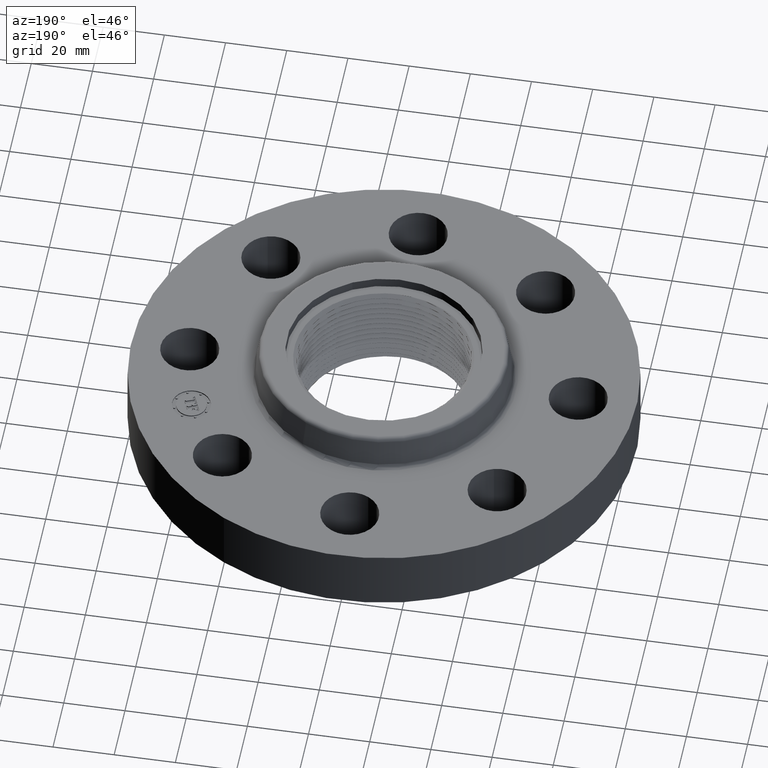
[diagram: clean part render]
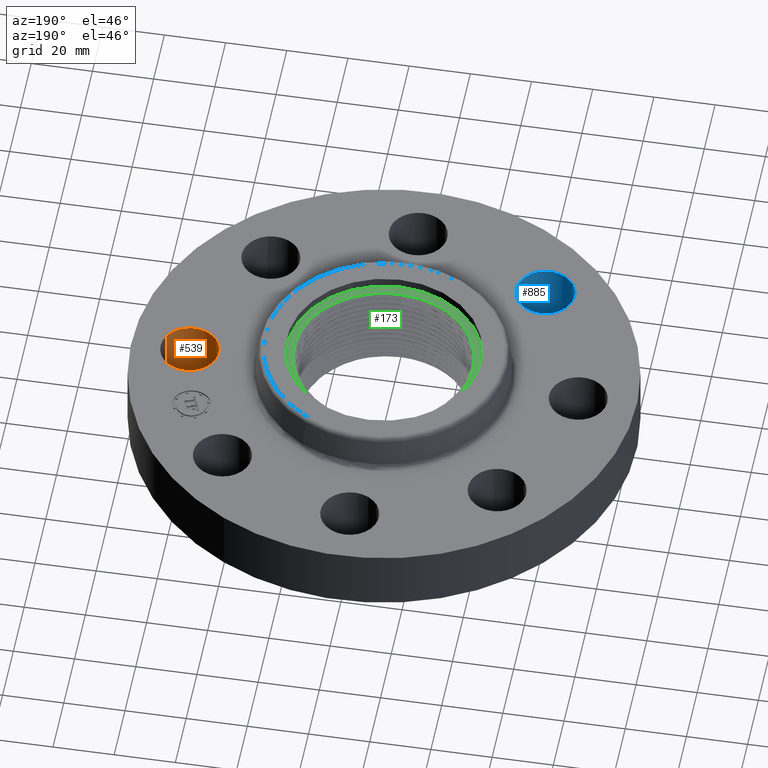
[diagram: same view with three faces highlighted in distinct colors, each labeled with its STEP entity id]
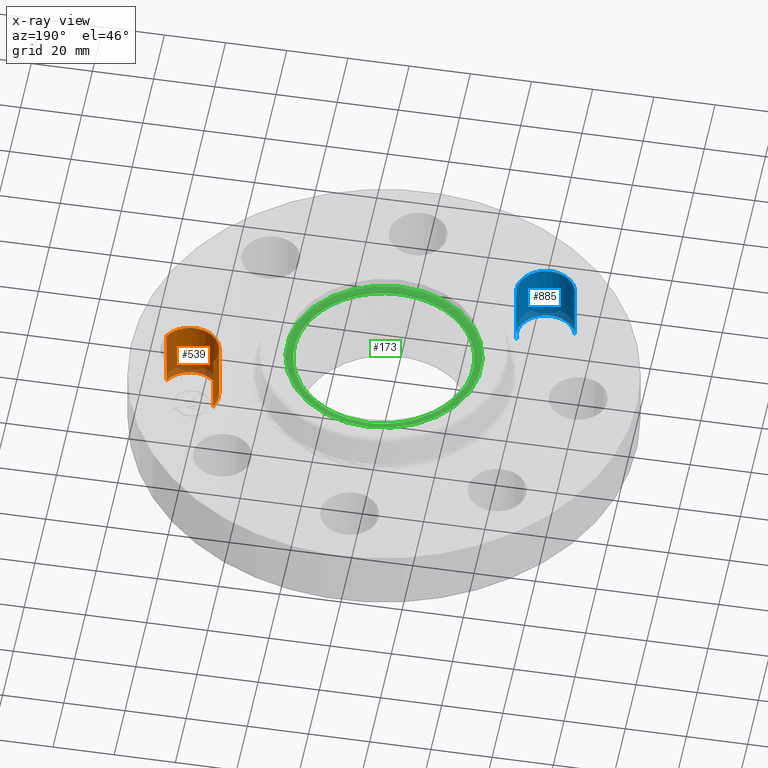
[diagram: x-ray of the same camera — body ghosted, the three highlighted faces saturated]
A machine part, auxiliary view with three faces highlighted in distinct colors.
The next image is the same camera in x-ray (body ghosted, the three faces saturated) — at least one of them is partly hidden behind the body in this view.
Their STEP definitions:

[orange] entity #539 — the highlighted cylindrical surface (edge-blend (fillet) strip) has radius 9.525 mm, axis along (0, -0, -1).
#199=AXIS2_PLACEMENT_3D('Circle Axis2P3D',#197,#198,$) ;
#500=AXIS2_PLACEMENT_3D('Cylinder Axis2P3D',#497,#498,#499) ;
#530=AXIS2_PLACEMENT_3D('Circle Axis2P3D',#528,#529,$) ;
#197=CARTESIAN_POINT('Axis2P3D Location',(2.50000000001,3.49676543189E-017,0.)) ;
#201=CARTESIAN_POINT('Vertex',(2.82909346072,-0.179784576977,0.)) ;
#203=CARTESIAN_POINT('Vertex',(2.1709065393,0.179784576977,0.)) ;
#497=CARTESIAN_POINT('Axis2P3D Location',(2.50000000001,0.,0.806062992129)) ;
#502=CARTESIAN_POINT('Line Origine',(2.1709065393,0.179784576977,0.405000000002)) ;
#506=CARTESIAN_POINT('Vertex',(2.1709065393,0.179784576977,0.810000000003)) ;
#509=CARTESIAN_POINT('Line Origine',(2.82909346072,-0.179784576977,0.405000000002)) ;
#513=CARTESIAN_POINT('Vertex',(2.82909346072,-0.179784576977,0.810000000003)) ;
#528=CARTESIAN_POINT('Axis2P3D Location',(2.50000000001,0.,0.810000000003)) ;
#198=DIRECTION('Axis2P3D Direction',(0.,0.,-0.0393700787402)) ;
#498=DIRECTION('Axis2P3D Direction',(0.,-0.,-0.0393700787402)) ;
#499=DIRECTION('Axis2P3D XDirection',(0.0345504945626,-0.0188750212049,0.)) ;
#503=DIRECTION('Vector Direction',(0.,0.,-0.0393700787402)) ;
#510=DIRECTION('Vector Direction',(0.,0.,-0.0393700787402)) ;
#529=DIRECTION('Axis2P3D Direction',(0.,-0.,-0.0393700787402)) ;
#504=VECTOR('Line Direction',#503,0.0393700787402) ;
#511=VECTOR('Line Direction',#510,0.0393700787402) ;
#534=ORIENTED_EDGE('',*,*,#515,.F.) ;
#535=ORIENTED_EDGE('',*,*,#205,.T.) ;
#536=ORIENTED_EDGE('',*,*,#508,.T.) ;
#537=ORIENTED_EDGE('',*,*,#532,.F.) ;
#539=ADVANCED_FACE('PartBody',(#538),#501,.F.) ;
#200=CIRCLE('generated circle',#199,0.375000000002) ;
#531=CIRCLE('generated circle',#530,0.375000000002) ;
#501=CYLINDRICAL_SURFACE('generated cylinder',#500,0.375000000002) ;
#205=EDGE_CURVE('',#202,#204,#200,.T.) ;
#508=EDGE_CURVE('',#204,#507,#505,.F.) ;
#515=EDGE_CURVE('',#202,#514,#512,.F.) ;
#532=EDGE_CURVE('',#514,#507,#531,.T.) ;
#533=EDGE_LOOP('',(#534,#535,#536,#537)) ;
#538=FACE_OUTER_BOUND('',#533,.T.) ;
#505=LINE('Line',#502,#504) ;
#512=LINE('Line',#509,#511) ;
#202=VERTEX_POINT('',#201) ;
#204=VERTEX_POINT('',#203) ;
#507=VERTEX_POINT('',#506) ;
#514=VERTEX_POINT('',#513) ;

[blue] entity #885 — the highlighted cylindrical surface (edge-blend (fillet) strip) has radius 9.525 mm, axis along (-0, 0, -1).
#253=AXIS2_PLACEMENT_3D('Circle Axis2P3D',#251,#252,$) ;
#858=AXIS2_PLACEMENT_3D('Cylinder Axis2P3D',#855,#856,#857) ;
#876=AXIS2_PLACEMENT_3D('Circle Axis2P3D',#874,#875,$) ;
#251=CARTESIAN_POINT('Axis2P3D Location',(-1.76776695297,-1.76776695297,0.)) ;
#255=CARTESIAN_POINT('Vertex',(-1.40793584173,-1.66218962879,0.)) ;
#257=CARTESIAN_POINT('Vertex',(-2.12759806422,-1.87334427715,0.)) ;
#855=CARTESIAN_POINT('Axis2P3D Location',(-1.76776695297,-1.76776695297,0.806062992129)) ;
#860=CARTESIAN_POINT('Line Origine',(-1.40793584173,-1.66218962879,0.405000000002)) ;
#864=CARTESIAN_POINT('Vertex',(-1.40793584173,-1.66218962879,0.810000000003)) ;
#867=CARTESIAN_POINT('Line Origine',(-2.12759806422,-1.87334427715,0.405000000002)) ;
#871=CARTESIAN_POINT('Vertex',(-2.12759806422,-1.87334427715,0.810000000003)) ;
#874=CARTESIAN_POINT('Axis2P3D Location',(-1.76776695297,-1.76776695297,0.810000000003)) ;
#252=DIRECTION('Axis2P3D Direction',(0.,0.,-0.0393700787402)) ;
#856=DIRECTION('Axis2P3D Direction',(-0.,0.,-0.0393700787402)) ;
#857=DIRECTION('Axis2P3D XDirection',(-0.0377775444876,-0.0110842335096,0.)) ;
#861=DIRECTION('Vector Direction',(0.,0.,-0.0393700787402)) ;
#868=DIRECTION('Vector Direction',(0.,0.,-0.0393700787402)) ;
#875=DIRECTION('Axis2P3D Direction',(-0.,0.,-0.0393700787402)) ;
#862=VECTOR('Line Direction',#861,0.0393700787402) ;
#869=VECTOR('Line Direction',#868,0.0393700787402) ;
#880=ORIENTED_EDGE('',*,*,#866,.F.) ;
#881=ORIENTED_EDGE('',*,*,#259,.T.) ;
#882=ORIENTED_EDGE('',*,*,#873,.T.) ;
#883=ORIENTED_EDGE('',*,*,#878,.F.) ;
#885=ADVANCED_FACE('PartBody',(#884),#859,.F.) ;
#254=CIRCLE('generated circle',#253,0.375000000001) ;
#877=CIRCLE('generated circle',#876,0.375000000001) ;
#859=CYLINDRICAL_SURFACE('generated cylinder',#858,0.375000000001) ;
#259=EDGE_CURVE('',#256,#258,#254,.T.) ;
#866=EDGE_CURVE('',#256,#865,#863,.F.) ;
#873=EDGE_CURVE('',#258,#872,#870,.F.) ;
#878=EDGE_CURVE('',#865,#872,#877,.T.) ;
#879=EDGE_LOOP('',(#880,#881,#882,#883)) ;
#884=FACE_OUTER_BOUND('',#879,.T.) ;
#863=LINE('Line',#860,#862) ;
#870=LINE('Line',#867,#869) ;
#256=VERTEX_POINT('',#255) ;
#258=VERTEX_POINT('',#257) ;
#865=VERTEX_POINT('',#864) ;
#872=VERTEX_POINT('',#871) ;

[green] entity #173 — the highlighted planar face has unit normal (0, 0, 1).
#38=AXIS2_PLACEMENT_3D('Plane Axis2P3D',#35,#36,#37) ;
#42=AXIS2_PLACEMENT_3D('Circle Axis2P3D',#40,#41,$) ;
#51=AXIS2_PLACEMENT_3D('Circle Axis2P3D',#49,#50,$) ;
#60=AXIS2_PLACEMENT_3D('Circle Axis2P3D',#58,#59,$) ;
#35=CARTESIAN_POINT('Axis2P3D Location',(2.30786518505E-016,-3.00721827143E-016,1.12)) ;
#40=CARTESIAN_POINT('Axis2P3D Location',(0.,0.,1.12)) ;
#44=CARTESIAN_POINT('Vertex',(-0.599281923258,1.09697820237,1.12)) ;
#46=CARTESIAN_POINT('Vertex',(0.599281923258,-1.09697820237,1.12)) ;
#49=CARTESIAN_POINT('Axis2P3D Location',(0.,0.,1.12)) ;
#58=CARTESIAN_POINT('Axis2P3D Location',(-4.68566567873E-016,8.39223703654E-017,1.12)) ;
#62=CARTESIAN_POINT('Vertex',(-0.150840070561,-1.10438011555,1.12)) ;
#64=CARTESIAN_POINT('Vertex',(-0.0171487735169,-1.11450172098,1.12)) ;
#68=CARTESIAN_POINT('Control Point',(-0.562426541409,1.0295170906,1.12)) ;
#69=CARTESIAN_POINT('Control Point',(-0.647778467446,0.980659770123,1.12)) ;
#70=CARTESIAN_POINT('Control Point',(-0.727920837051,0.922907400414,1.12)) ;
#71=CARTESIAN_POINT('Control Point',(-0.801596539818,0.85699662272,1.12)) ;
#72=CARTESIAN_POINT('Control Point',(-0.933872549589,0.710830324438,1.12)) ;
#73=CARTESIAN_POINT('Control Point',(-1.03259605048,0.540727091829,1.12)) ;
#74=CARTESIAN_POINT('Control Point',(-1.07274478723,0.450838947086,1.12)) ;
#75=CARTESIAN_POINT('Control Point',(-1.13340762027,0.264163538251,1.12)) ;
#76=CARTESIAN_POINT('Control Point',(-1.15366900757,0.0693156180802,1.12)) ;
#77=CARTESIAN_POINT('Control Point',(-1.15340992681,-0.0287306099282,1.12)) ;
#78=CARTESIAN_POINT('Control Point',(-1.13669207191,-0.181436369489,1.12)) ;
#79=CARTESIAN_POINT('Control Point',(-1.09515365689,-0.328474119518,1.12)) ;
#80=CARTESIAN_POINT('Control Point',(-1.07683043246,-0.380917161178,1.12)) ;
#81=CARTESIAN_POINT('Control Point',(-1.01783516613,-0.5216507378,1.12)) ;
#82=CARTESIAN_POINT('Control Point',(-0.93613900015,-0.650865634626,1.12)) ;
#83=CARTESIAN_POINT('Control Point',(-0.875612101569,-0.727134902953,1.12)) ;
#84=CARTESIAN_POINT('Control Point',(-0.739373475256,-0.865443232592,1.12)) ;
#85=CARTESIAN_POINT('Control Point',(-0.577361896007,-0.971595204354,1.12)) ;
#86=CARTESIAN_POINT('Control Point',(-0.491032431877,-1.01572821413,1.12)) ;
#87=CARTESIAN_POINT('Control Point',(-0.370629394461,-1.06173719781,1.12)) ;
#88=CARTESIAN_POINT('Control Point',(-0.245714103949,-1.08997743427,1.12)) ;
#89=CARTESIAN_POINT('Control Point',(-0.214246143192,-1.09591493007,1.12)) ;
#90=CARTESIAN_POINT('Control Point',(-0.182603145833,-1.10071782842,1.12)) ;
#91=CARTESIAN_POINT('Control Point',(-0.150839914952,-1.10438030402,1.12)) ;
#92=CARTESIAN_POINT('Vertex',(-0.562426541409,1.0295170906,1.12)) ;
#96=CARTESIAN_POINT('Control Point',(-0.092768083877,1.17932394937,1.12)) ;
#97=CARTESIAN_POINT('Control Point',(-0.191821582769,1.16956242431,1.12)) ;
#98=CARTESIAN_POINT('Control Point',(-0.289745784226,1.14939116665,1.12)) ;
#99=CARTESIAN_POINT('Control Point',(-0.385084495439,1.11896641438,1.12)) ;
#100=CARTESIAN_POINT('Control Point',(-0.476401567714,1.07875967847,1.12)) ;
#101=CARTESIAN_POINT('Control Point',(-0.562426541409,1.0295170906,1.12)) ;
#102=CARTESIAN_POINT('Vertex',(-0.092768083877,1.17932394937,1.12)) ;
#106=CARTESIAN_POINT('Control Point',(-0.092768083877,1.17932394937,1.12)) ;
#107=CARTESIAN_POINT('Control Point',(-0.074235691843,1.18044929492,1.12)) ;
#108=CARTESIAN_POINT('Control Point',(-0.0556842739066,1.18121081772,1.12)) ;
#109=CARTESIAN_POINT('Control Point',(-0.037111086878,1.18160817611,1.12)) ;
#110=CARTESIAN_POINT('Control Point',(-0.018550214268,1.18164071155,1.12)) ;
#111=CARTESIAN_POINT('Control Point',(1.05429838113E-006,1.18130902656,1.12)) ;
#112=CARTESIAN_POINT('Vertex',(1.05429838109E-006,1.18130902656,1.12)) ;
#116=CARTESIAN_POINT('Control Point',(1.0542983772E-006,1.18130902656,1.12)) ;
#117=CARTESIAN_POINT('Control Point',(0.0986706284277,1.17954487658,1.12)) ;
#118=CARTESIAN_POINT('Control Point',(0.197068334388,1.16747720307,1.12)) ;
#119=CARTESIAN_POINT('Control Point',(0.293743360111,1.14514338525,1.12)) ;
#120=CARTESIAN_POINT('Control Point',(0.480812992993,1.08063589885,1.12)) ;
#121=CARTESIAN_POINT('Control Point',(0.650098876913,0.978943808893,1.12)) ;
#122=CARTESIAN_POINT('Control Point',(0.729016731166,0.919409419969,1.12)) ;
#123=CARTESIAN_POINT('Control Point',(0.873010898305,0.784798756967,1.12)) ;
#124=CARTESIAN_POINT('Control Point',(0.985645857059,0.623431967474,1.12)) ;
#125=CARTESIAN_POINT('Control Point',(1.0331805336,0.537164134028,1.12)) ;
#126=CARTESIAN_POINT('Control Point',(1.09295894838,0.394867092219,1.12)) ;
#127=CARTESIAN_POINT('Control Point',(1.12829625758,0.245428148141,1.12)) ;
#128=CARTESIAN_POINT('Control Point',(1.13783510269,0.19041846962,1.12)) ;
#129=CARTESIAN_POINT('Control Point',(1.15485146255,0.0380008581671,1.12)) ;
#130=CARTESIAN_POINT('Control Point',(1.1464329547,-0.115446448516,1.12)) ;
#131=CARTESIAN_POINT('Control Point',(1.13071563112,-0.212064603479,1.12)) ;
#132=CARTESIAN_POINT('Control Point',(1.07907845653,-0.400304978466,1.12)) ;
#133=CARTESIAN_POINT('Control Point',(0.989212245408,-0.573147639066,1.12)) ;
#134=CARTESIAN_POINT('Control Point',(0.935256886614,-0.654382122923,1.12)) ;
#135=CARTESIAN_POINT('Control Point',(0.830962026319,-0.7799183649,1.12)) ;
#136=CARTESIAN_POINT('Control Point',(0.706580465292,-0.884467452085,1.12)) ;
#137=CARTESIAN_POINT('Control Point',(0.653355683388,-0.922978496175,1.12)) ;
#138=CARTESIAN_POINT('Control Point',(0.597557657444,-0.95747220928,1.12)) ;
#139=CARTESIAN_POINT('Control Point',(0.539601083007,-0.987736156473,1.12)) ;
#140=CARTESIAN_POINT('Vertex',(0.539601083007,-0.987736156473,1.12)) ;
#144=CARTESIAN_POINT('Control Point',(0.539601083007,-0.987736156473,1.12)) ;
#145=CARTESIAN_POINT('Control Point',(0.449920791978,-1.03456569423,1.12)) ;
#146=CARTESIAN_POINT('Control Point',(0.355071853545,-1.07126769182,1.12)) ;
#147=CARTESIAN_POINT('Control Point',(0.256569217146,-1.09706677648,1.12)) ;
#148=CARTESIAN_POINT('Control Point',(0.145060945382,-1.11312465449,1.12)) ;
#149=CARTESIAN_POINT('Control Point',(0.0332544966505,-1.11517516006,1.12)) ;
#150=CARTESIAN_POINT('Control Point',(0.0221648799452,-1.11524071559,1.12)) ;
#151=CARTESIAN_POINT('Control Point',(0.011079674991,-1.11516848422,1.12)) ;
#152=CARTESIAN_POINT('Control Point',(-1.60504942207E-006,-1.11495856213,1.12)) ;
#153=CARTESIAN_POINT('Vertex',(-1.60504942194E-006,-1.11495856213,1.12)) ;
#157=CARTESIAN_POINT('Control Point',(-1.60504942013E-006,-1.11495856213,1.12)) ;
#158=CARTESIAN_POINT('Control Point',(-0.00343191115714,-1.11489357893,1.12)) ;
#159=CARTESIAN_POINT('Control Point',(-0.00686184131403,-1.11481540118,1.12)) ;
#160=CARTESIAN_POINT('Control Point',(-0.0102914091141,-1.11472402863,1.12)) ;
#161=CARTESIAN_POINT('Control Point',(-0.0137203827362,-1.11461946823,1.12)) ;
#162=CARTESIAN_POINT('Control Point',(-0.0171487734554,-1.11450172109,1.12)) ;
#36=DIRECTION('Axis2P3D Direction',(0.,0.,0.0393700787402)) ;
#37=DIRECTION('Axis2P3D XDirection',(0.0393700787402,0.,0.)) ;
#41=DIRECTION('Axis2P3D Direction',(0.,0.,0.0393700787402)) ;
#50=DIRECTION('Axis2P3D Direction',(0.,0.,0.0393700787402)) ;
#59=DIRECTION('Axis2P3D Direction',(0.,0.,0.0393700787402)) ;
#55=ORIENTED_EDGE('',*,*,#48,.T.) ;
#56=ORIENTED_EDGE('',*,*,#53,.T.) ;
#165=ORIENTED_EDGE('',*,*,#66,.F.) ;
#166=ORIENTED_EDGE('',*,*,#94,.F.) ;
#167=ORIENTED_EDGE('',*,*,#104,.F.) ;
#168=ORIENTED_EDGE('',*,*,#114,.T.) ;
#169=ORIENTED_EDGE('',*,*,#142,.T.) ;
#170=ORIENTED_EDGE('',*,*,#155,.T.) ;
#171=ORIENTED_EDGE('',*,*,#163,.T.) ;
#172=FACE_BOUND('',#164,.T.) ;
#173=ADVANCED_FACE('PartBody',(#57,#172),#39,.T.) ;
#67=B_SPLINE_CURVE_WITH_KNOTS('',5,(#68,#69,#70,#71,#72,#73,#74,#75,#76,#77,#78,#79,#80,#81,#82,#83,#84,#85,#86,#87,#88,#89,#90,#91),.UNSPECIFIED.,.F.,.U.,(6,3,3,3,3,3,3,6),(0.,17.4833817144,34.9752780926,52.4645756964,62.4562070835,79.9482461122,97.4469645623,103.282346768),.UNSPECIFIED.) ;
#95=B_SPLINE_CURVE_WITH_KNOTS('',5,(#96,#97,#98,#99,#100,#101),.UNSPECIFIED.,.F.,.U.,(6,6),(0.,17.6212479634),.UNSPECIFIED.) ;
#105=B_SPLINE_CURVE_WITH_KNOTS('',5,(#106,#107,#108,#109,#110,#111),.UNSPECIFIED.,.F.,.U.,(6,6),(0.,3.28696681434),.UNSPECIFIED.) ;
#115=B_SPLINE_CURVE_WITH_KNOTS('',5,(#116,#117,#118,#119,#120,#121,#122,#123,#124,#125,#126,#127,#128,#129,#130,#131,#132,#133,#134,#135,#136,#137,#138,#139),.UNSPECIFIED.,.F.,.U.,(6,3,3,3,3,3,3,6),(0.,17.4825573032,34.9704553259,52.4525142777,62.4384848041,79.9175632257,97.3996234112,109.258859329),.UNSPECIFIED.) ;
#143=B_SPLINE_CURVE_WITH_KNOTS('',5,(#144,#145,#146,#147,#148,#149,#150,#151,#152),.UNSPECIFIED.,.F.,.U.,(6,3,6),(0.,18.3506312901,20.3704701994),.UNSPECIFIED.) ;
#156=B_SPLINE_CURVE_WITH_KNOTS('',5,(#157,#158,#159,#160,#161,#162),.UNSPECIFIED.,.F.,.U.,(6,6),(0.,0.6252586093),.UNSPECIFIED.) ;
#43=CIRCLE('generated circle',#42,1.25000000001) ;
#52=CIRCLE('generated circle',#51,1.25000000001) ;
#61=CIRCLE('generated circle',#60,1.11463364677) ;
#48=EDGE_CURVE('',#45,#47,#43,.T.) ;
#53=EDGE_CURVE('',#47,#45,#52,.T.) ;
#66=EDGE_CURVE('',#63,#65,#61,.T.) ;
#94=EDGE_CURVE('',#93,#63,#67,.T.) ;
#104=EDGE_CURVE('',#103,#93,#95,.T.) ;
#114=EDGE_CURVE('',#103,#113,#105,.T.) ;
#142=EDGE_CURVE('',#113,#141,#115,.T.) ;
#155=EDGE_CURVE('',#141,#154,#143,.T.) ;
#163=EDGE_CURVE('',#154,#65,#156,.T.) ;
#54=EDGE_LOOP('',(#55,#56)) ;
#164=EDGE_LOOP('',(#165,#166,#167,#168,#169,#170,#171)) ;
#57=FACE_OUTER_BOUND('',#54,.T.) ;
#39=PLANE('',#38) ;
#45=VERTEX_POINT('',#44) ;
#47=VERTEX_POINT('',#46) ;
#63=VERTEX_POINT('',#62) ;
#65=VERTEX_POINT('',#64) ;
#93=VERTEX_POINT('',#92) ;
#103=VERTEX_POINT('',#102) ;
#113=VERTEX_POINT('',#112) ;
#141=VERTEX_POINT('',#140) ;
#154=VERTEX_POINT('',#153) ;